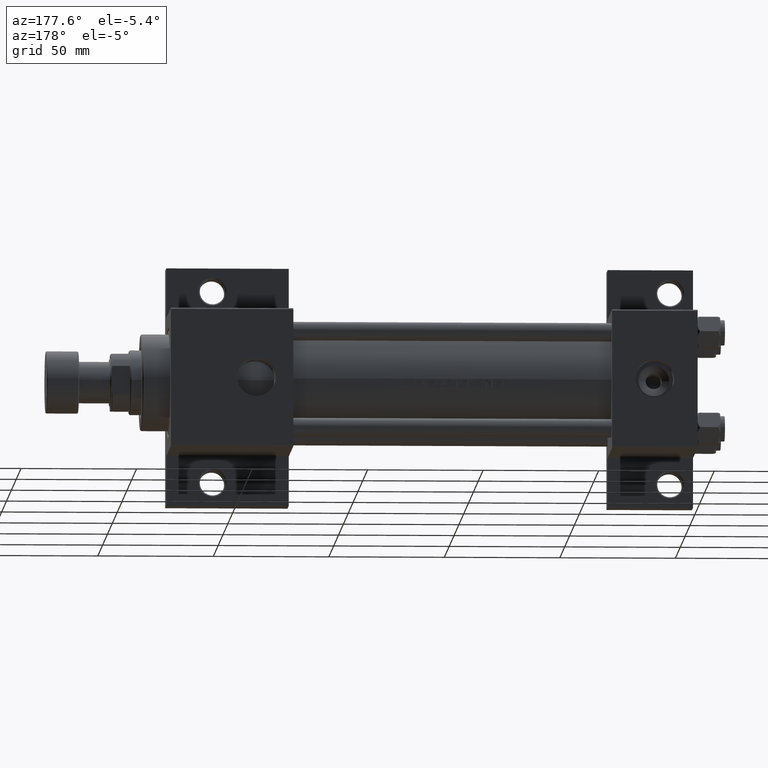
[diagram: clean part render]
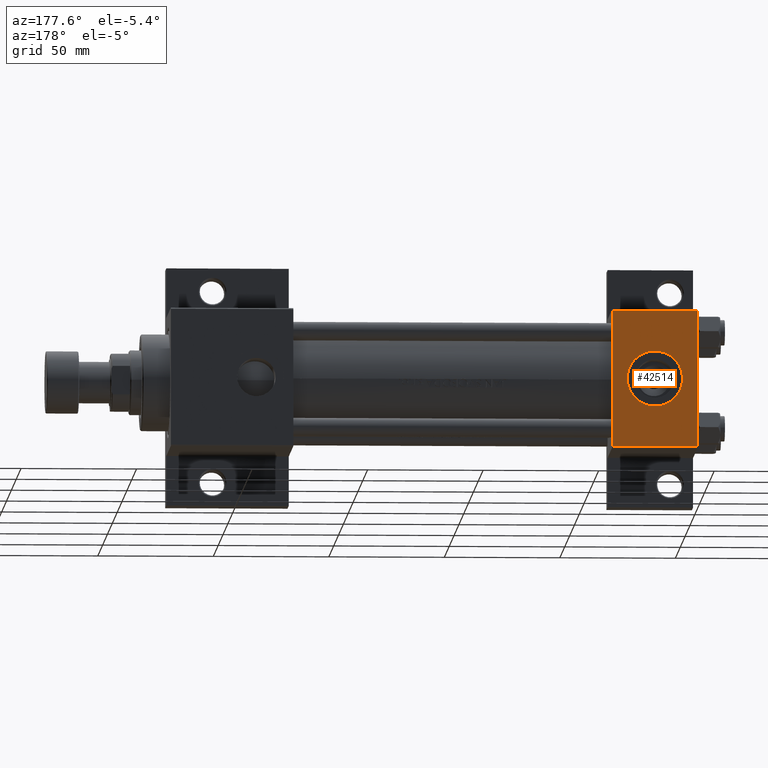
[diagram: same view with one face highlighted and labeled with its STEP entity id]
A machine part, auxiliary view. The second image highlights one B-rep face of the part: STEP entity #42514.
In plain terms, the highlighted planar face has unit normal (0, -1, -0).
Its self-contained STEP definition (entity closure, byte-faithful):
#1908 = VERTEX_POINT ( 'NONE', #9777 ) ;
#3094 = CARTESIAN_POINT ( 'NONE',  ( 18.50000000000000000, -3.469446951953614978E-15, 29.99999999999999645 ) ) ;
#3967 = ORIENTED_EDGE ( 'NONE', *, *, #6611, .T. ) ;
#4185 = ORIENTED_EDGE ( 'NONE', *, *, #23063, .F. ) ;
#4404 = EDGE_CURVE ( 'NONE', #29211, #42431, #40721, .T. ) ;
#4622 = DIRECTION ( 'NONE',  ( 0.000000000000000000, 1.000000000000000000, 1.156482317317871725E-16 ) ) ;
#4850 = FACE_BOUND ( 'NONE', #24865, .T. ) ;
#5094 = DIRECTION ( 'NONE',  ( 0.000000000000000000, 0.000000000000000000, 1.000000000000000000 ) ) ;
#5202 = CARTESIAN_POINT ( 'NONE',  ( 0.000000000000000000, -29.49999999999998579, 29.99999999999999289 ) ) ;
#6261 = DIRECTION ( 'NONE',  ( 1.000000000000000000, 0.000000000000000000, 0.000000000000000000 ) ) ;
#6611 = EDGE_CURVE ( 'NONE', #19033, #29211, #30490, .T. ) ;
#6729 = AXIS2_PLACEMENT_3D ( 'NONE', #42551, #5094, #24071 ) ;
#6959 = EDGE_CURVE ( 'NONE', #16790, #35601, #21496, .T. ) ;
#8001 = LINE ( 'NONE', #37202, #38441 ) ;
#8738 = CARTESIAN_POINT ( 'NONE',  ( 37.00000000000000000, 29.99999999999999289, 30.00000000000000000 ) ) ;
#9777 = CARTESIAN_POINT ( 'NONE',  ( 37.00000000000000000, -29.49999999999998579, 29.99999999999999289 ) ) ;
#10688 = CARTESIAN_POINT ( 'NONE',  ( 37.00000000000000000, 29.99999999999999289, 30.00000000000000000 ) ) ;
#10802 = EDGE_CURVE ( 'NONE', #35601, #16790, #44754, .T. ) ;
#11937 = EDGE_LOOP ( 'NONE', ( #23240, #40700, #4185, #3967 ) ) ;
#13761 = CARTESIAN_POINT ( 'NONE',  ( 37.00000000000000000, 29.49999999999999289, 30.00000000000000000 ) ) ;
#14098 = CARTESIAN_POINT ( 'NONE',  ( 0.000000000000000000, 29.49999999999999289, 30.00000000000000000 ) ) ;
#15182 = CARTESIAN_POINT ( 'NONE',  ( 0.000000000000000000, 29.99999999999999289, 30.00000000000000000 ) ) ;
#16042 = FACE_OUTER_BOUND ( 'NONE', #11937, .T. ) ;
#16790 = VERTEX_POINT ( 'NONE', #31939 ) ;
#19033 = VERTEX_POINT ( 'NONE', #13761 ) ;
#21496 = CIRCLE ( 'NONE', #6729, 12.00000000000000000 ) ;
#21650 = CARTESIAN_POINT ( 'NONE',  ( 30.50000000000000000, -3.469446951953614978E-15, 29.99999999999999645 ) ) ;
#23063 = EDGE_CURVE ( 'NONE', #19033, #1908, #25761, .T. ) ;
#23240 = ORIENTED_EDGE ( 'NONE', *, *, #4404, .T. ) ;
#24071 = DIRECTION ( 'NONE',  ( 1.000000000000000000, 0.000000000000000000, 0.000000000000000000 ) ) ;
#24865 = EDGE_LOOP ( 'NONE', ( #42505, #46015 ) ) ;
#25145 = VECTOR ( 'NONE', #25284, 1000.000000000000000 ) ;
#25284 = DIRECTION ( 'NONE',  ( 0.000000000000000000, -1.000000000000000000, -1.156482317317871725E-16 ) ) ;
#25659 = DIRECTION ( 'NONE',  ( 0.000000000000000000, -1.000000000000000000, -1.156482317317871725E-16 ) ) ;
#25761 = LINE ( 'NONE', #10688, #25145 ) ;
#26009 = EDGE_CURVE ( 'NONE', #42431, #1908, #8001, .T. ) ;
#26845 = CARTESIAN_POINT ( 'NONE',  ( 0.000000000000000000, 29.49999999999999289, 30.00000000000000000 ) ) ;
#28475 = AXIS2_PLACEMENT_3D ( 'NONE', #3094, #35707, #6261 ) ;
#29211 = VERTEX_POINT ( 'NONE', #14098 ) ;
#29903 = PLANE ( 'NONE',  #30302 ) ;
#30017 = DIRECTION ( 'NONE',  ( -1.000000000000000000, 0.000000000000000000, 0.000000000000000000 ) ) ;
#30302 = AXIS2_PLACEMENT_3D ( 'NONE', #8738, #38398, #4622 ) ;
#30490 = LINE ( 'NONE', #26845, #40867 ) ;
#31939 = CARTESIAN_POINT ( 'NONE',  ( 6.499999999999997335, -1.999870792976790833E-15, 29.99999999999999645 ) ) ;
#35358 = VECTOR ( 'NONE', #25659, 1000.000000000000000 ) ;
#35601 = VERTEX_POINT ( 'NONE', #21650 ) ;
#35707 = DIRECTION ( 'NONE',  ( 0.000000000000000000, 0.000000000000000000, 1.000000000000000000 ) ) ;
#37202 = CARTESIAN_POINT ( 'NONE',  ( 37.00000000000000000, -29.50000000000000000, 29.99999999999999289 ) ) ;
#38398 = DIRECTION ( 'NONE',  ( 0.000000000000000000, 1.156482317317871725E-16, -1.000000000000000000 ) ) ;
#38441 = VECTOR ( 'NONE', #44730, 1000.000000000000000 ) ;
#40700 = ORIENTED_EDGE ( 'NONE', *, *, #26009, .T. ) ;
#40721 = LINE ( 'NONE', #15182, #35358 ) ;
#40867 = VECTOR ( 'NONE', #30017, 1000.000000000000000 ) ;
#42431 = VERTEX_POINT ( 'NONE', #5202 ) ;
#42505 = ORIENTED_EDGE ( 'NONE', *, *, #10802, .F. ) ;
#42514 = ADVANCED_FACE ( 'NONE', ( #4850, #16042 ), #29903, .F. ) ;
#42551 = CARTESIAN_POINT ( 'NONE',  ( 18.50000000000000000, -3.469446951953614978E-15, 29.99999999999999645 ) ) ;
#44730 = DIRECTION ( 'NONE',  ( 1.000000000000000000, 0.000000000000000000, 0.000000000000000000 ) ) ;
#44754 = CIRCLE ( 'NONE', #28475, 12.00000000000000000 ) ;
#46015 = ORIENTED_EDGE ( 'NONE', *, *, #6959, .F. ) ;